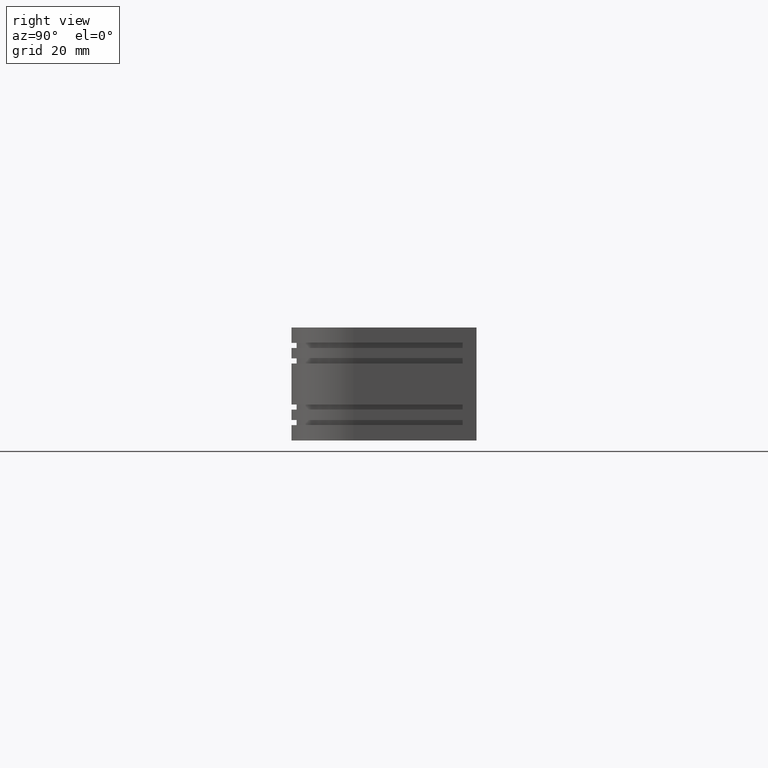
[diagram: clean part render]
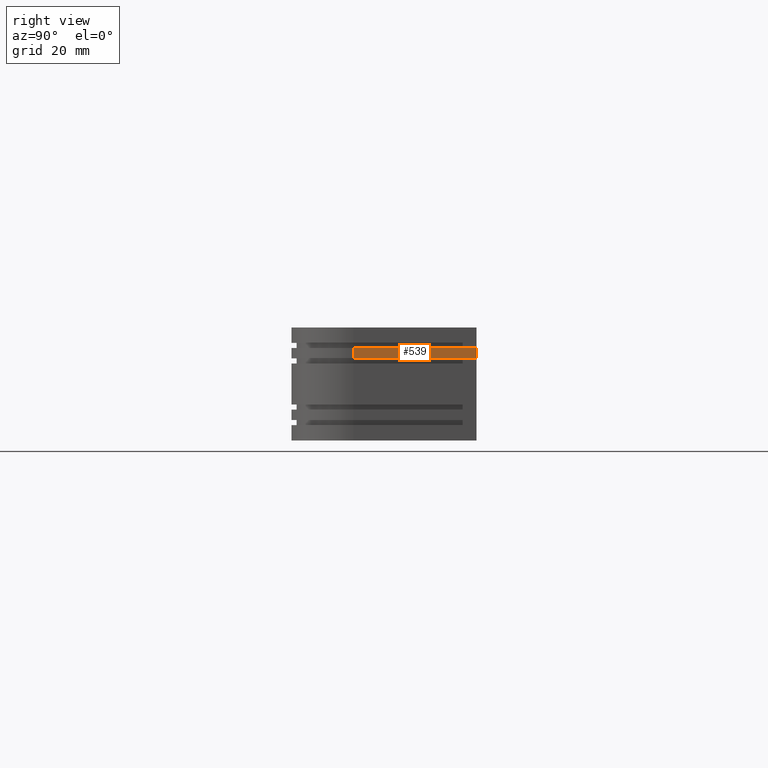
[diagram: same view with one face highlighted and labeled with its STEP entity id]
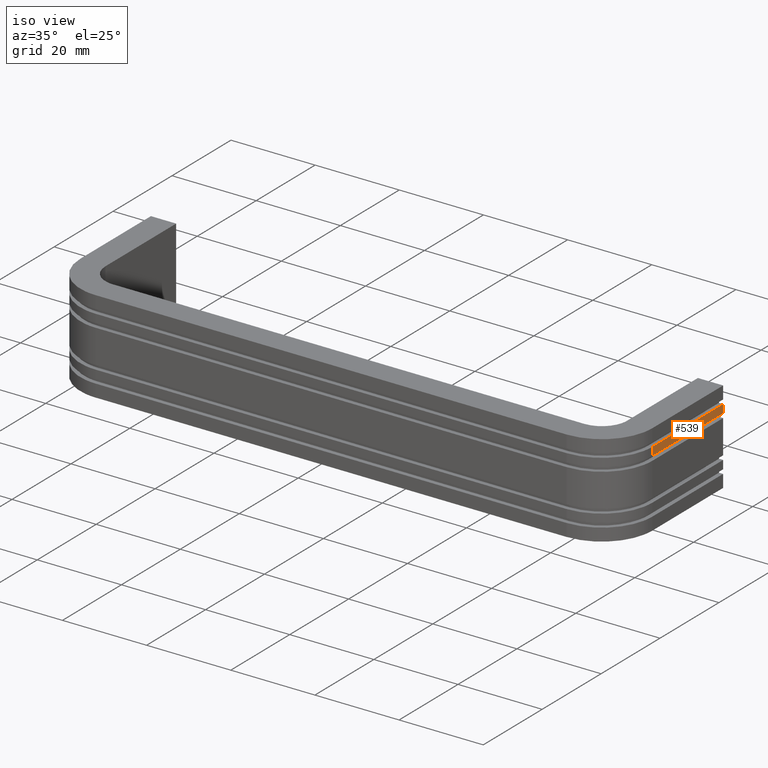
[diagram: same view with one face highlighted and labeled with its STEP entity id]
A machine part, right view. The second image highlights one B-rep face of the part: STEP entity #539.
A second angle (iso view) of the same face is appended — the face is thin or edge-on in the first view.
In plain terms, the highlighted face is a freeform B-spline surface patch.
Its self-contained STEP definition (entity closure, byte-faithful):
#504=CARTESIAN_POINT('',(132.999900000000000,-25.198799953483348,4.900100003876388));
#505=CARTESIAN_POINT('',(132.999900000000000,-25.198799953483348,7.099900049767793));
#506=CARTESIAN_POINT('',(132.999900000000000,1.198800597213507,4.900100003876388));
#507=CARTESIAN_POINT('',(132.999900000000000,1.198800597213507,7.099900049767793));
#508=B_SPLINE_SURFACE_WITH_KNOTS('',1,1,((#504,#506),(#505,#507)),.UNSPECIFIED.,.F.,.F.,.U.,(2,2),(2,2),(0.0,2.199800045891405),(0.0,26.397600550696851),.UNSPECIFIED.);
#509=CARTESIAN_POINT('',(132.999900000000000,-24.0,7.0));
#510=VERTEX_POINT('',#509);
#511=CARTESIAN_POINT('',(132.999900000000000,0.0,7.0));
#512=VERTEX_POINT('',#511);
#513=CARTESIAN_POINT('',(132.999900000000000,-24.0,7.0));
#514=CARTESIAN_POINT('',(132.999900000000000,0.0,7.0));
#515=QUASI_UNIFORM_CURVE('',1,(#513,#514),.UNSPECIFIED.,.F.,.U.);
#516=EDGE_CURVE('',#510,#512,#515,.T.);
#517=ORIENTED_EDGE('',*,*,#516,.F.);
#518=CARTESIAN_POINT('',(132.999900000000000,-24.0,5.0));
#519=VERTEX_POINT('',#518);
#520=CARTESIAN_POINT('',(132.999900000000000,-24.0,5.0));
#521=CARTESIAN_POINT('',(132.999900000000000,-24.0,7.0));
#522=QUASI_UNIFORM_CURVE('',1,(#520,#521),.UNSPECIFIED.,.F.,.U.);
#523=EDGE_CURVE('',#519,#510,#522,.T.);
#524=ORIENTED_EDGE('',*,*,#523,.F.);
#525=CARTESIAN_POINT('',(132.999900000000000,0.0,5.0));
#526=VERTEX_POINT('',#525);
#527=CARTESIAN_POINT('',(132.999900000000000,-24.0,5.0));
#528=CARTESIAN_POINT('',(132.999900000000000,0.0,5.0));
#529=QUASI_UNIFORM_CURVE('',1,(#527,#528),.UNSPECIFIED.,.F.,.U.);
#530=EDGE_CURVE('',#519,#526,#529,.T.);
#531=ORIENTED_EDGE('',*,*,#530,.T.);
#532=CARTESIAN_POINT('',(132.999900000000000,0.0,5.0));
#533=CARTESIAN_POINT('',(132.999900000000000,0.0,7.0));
#534=QUASI_UNIFORM_CURVE('',1,(#532,#533),.UNSPECIFIED.,.F.,.U.);
#535=EDGE_CURVE('',#526,#512,#534,.T.);
#536=ORIENTED_EDGE('',*,*,#535,.T.);
#537=EDGE_LOOP('',(#517,#524,#531,#536));
#538=FACE_OUTER_BOUND('',#537,.T.);
#539=ADVANCED_FACE('',(#538),#508,.F.);